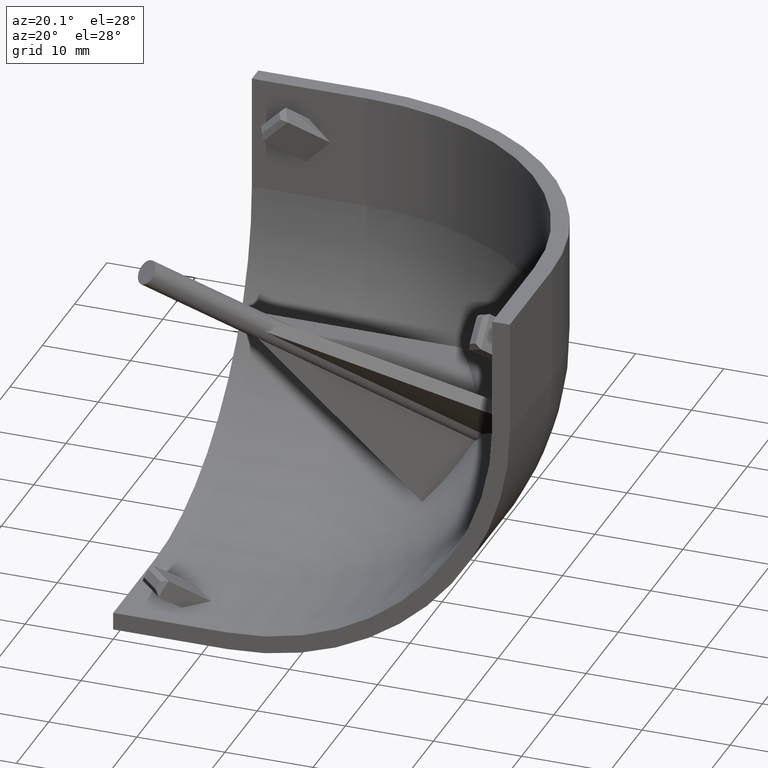
[diagram: clean part render]
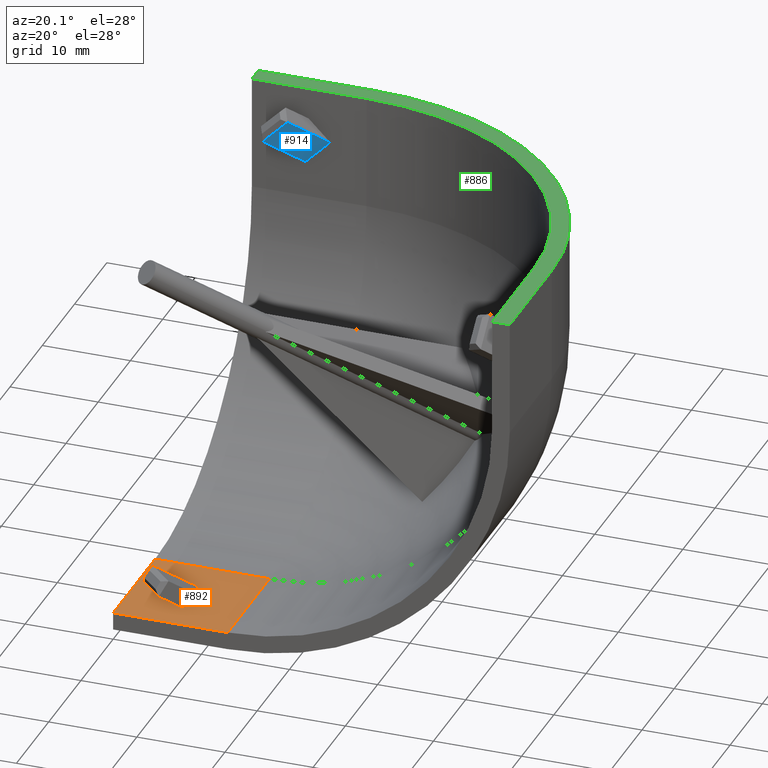
[diagram: same view with three faces highlighted in distinct colors, each labeled with its STEP entity id]
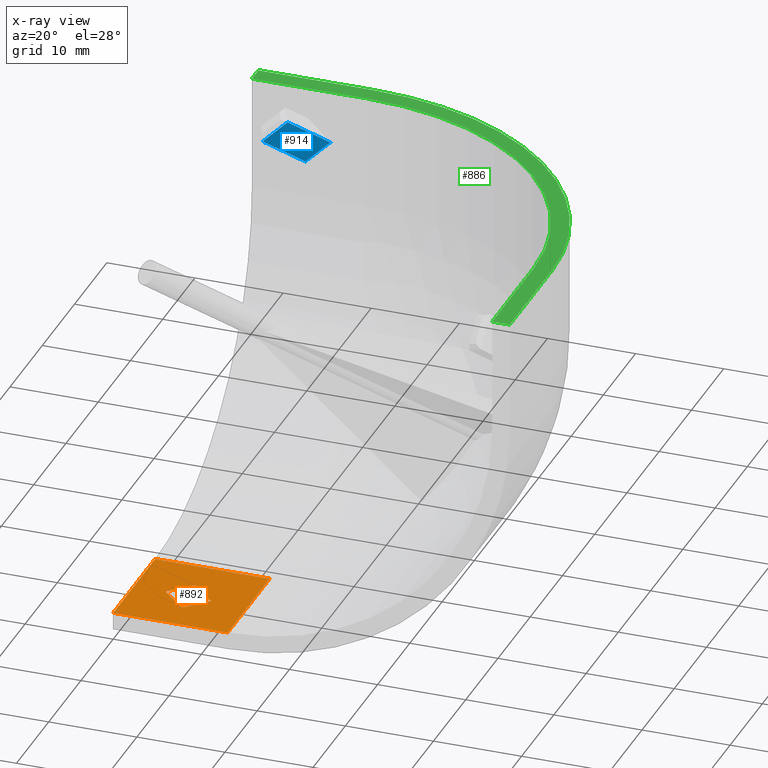
[diagram: x-ray of the same camera — body ghosted, the three highlighted faces saturated]
A machine part, auxiliary view with three faces highlighted in distinct colors.
The next image is the same camera in x-ray (body ghosted, the three faces saturated) — at least one of them is partly hidden behind the body in this view.
Their STEP definitions:

[orange] entity #892 — the highlighted planar face has unit normal (0, 0, -1).
#23=PLANE('',#977);
#67=FACE_BOUND('',#345,.T.);
#78=LINE('',#1346,#177);
#89=LINE('',#1375,#188);
#106=LINE('',#1415,#205);
#108=LINE('',#1420,#207);
#109=LINE('',#1423,#208);
#110=LINE('',#1425,#209);
#111=LINE('',#1427,#210);
#112=LINE('',#1428,#211);
#177=VECTOR('',#1074,12.9999999999998);
#188=VECTOR('',#1101,13.);
#205=VECTOR('',#1140,12.9999999999998);
#207=VECTOR('',#1148,12.9999999999999);
#208=VECTOR('',#1149,3.46410161503992);
#209=VECTOR('',#1150,3.99999999971386);
#210=VECTOR('',#1151,3.46410161498843);
#211=VECTOR('',#1152,3.99999999972648);
#285=FACE_OUTER_BOUND('',#344,.T.);
#344=EDGE_LOOP('',(#718,#719,#720,#721));
#345=EDGE_LOOP('',(#722,#723,#724,#725));
#424=VERTEX_POINT('',#1315);
#436=VERTEX_POINT('',#1343);
#437=VERTEX_POINT('',#1345);
#447=VERTEX_POINT('',#1373);
#460=VERTEX_POINT('',#1421);
#461=VERTEX_POINT('',#1422);
#462=VERTEX_POINT('',#1424);
#463=VERTEX_POINT('',#1426);
#518=EDGE_CURVE('',#436,#437,#78,.T.);
#533=EDGE_CURVE('',#436,#447,#89,.T.);
#554=EDGE_CURVE('',#447,#424,#106,.T.);
#556=EDGE_CURVE('',#437,#424,#108,.T.);
#557=EDGE_CURVE('',#460,#461,#109,.T.);
#558=EDGE_CURVE('',#462,#460,#110,.T.);
#559=EDGE_CURVE('',#463,#462,#111,.T.);
#560=EDGE_CURVE('',#461,#463,#112,.T.);
#718=ORIENTED_EDGE('',*,*,#518,.F.);
#719=ORIENTED_EDGE('',*,*,#533,.T.);
#720=ORIENTED_EDGE('',*,*,#554,.T.);
#721=ORIENTED_EDGE('',*,*,#556,.F.);
#722=ORIENTED_EDGE('',*,*,#557,.F.);
#723=ORIENTED_EDGE('',*,*,#558,.F.);
#724=ORIENTED_EDGE('',*,*,#559,.F.);
#725=ORIENTED_EDGE('',*,*,#560,.F.);
#892=ADVANCED_FACE('',(#285,#67),#23,.F.);
#977=AXIS2_PLACEMENT_3D('',#1419,#1146,#1147);
#1074=DIRECTION('',(0.,1.,0.));
#1101=DIRECTION('',(1.,0.,0.));
#1140=DIRECTION('',(0.,1.,0.));
#1146=DIRECTION('center_axis',(0.,0.,-1.));
#1147=DIRECTION('ref_axis',(-1.,0.,0.));
#1148=DIRECTION('',(1.,0.,0.));
#1149=DIRECTION('',(-0.707106781186548,-0.707106781186548,7.69185074589951E-15));
#1150=DIRECTION('',(-0.707106781186541,0.707106781186554,-2.22044604926627E-15));
#1151=DIRECTION('',(0.707106781186547,0.707106781186548,-7.69185074577494E-15));
#1152=DIRECTION('',(0.707106781186543,-0.707106781186552,2.22044604920326E-15));
#1315=CARTESIAN_POINT('',(12.9999999999999,12.9999999999996,-43.));
#1343=CARTESIAN_POINT('',(0.,-3.05311331771918E-13,-42.9999999999998));
#1345=CARTESIAN_POINT('',(0.,12.9999999999995,-42.9999999999999));
#1346=CARTESIAN_POINT('',(0.,-3.05311331771918E-13,-42.9999999999998));
#1373=CARTESIAN_POINT('',(13.,-1.94289029309402E-13,-42.9999999999999));
#1375=CARTESIAN_POINT('',(-7.105427357601E-15,-6.66133814775094E-13,-42.9999999999996));
#1415=CARTESIAN_POINT('',(13.,-1.94289029309402E-13,-42.9999999999999));
#1419=CARTESIAN_POINT('Origin',(-55.2177507691141,-6.66133814775094E-13,
-42.9999999999996));
#1420=CARTESIAN_POINT('',(0.,12.9999999999992,-42.9999999999997));
#1421=CARTESIAN_POINT('',(6.07063465642669,8.89783703581626,-43.0000000012206));
#1422=CARTESIAN_POINT('',(3.62114491370378,6.44834729311119,-43.0000000011923));
#1423=CARTESIAN_POINT('',(6.07063465740066,8.89783703623107,-43.0000000000212));
#1424=CARTESIAN_POINT('',(8.89906178096568,6.06940991126753,-43.0000000012268));
#1425=CARTESIAN_POINT('',(8.89906178170461,6.06940991215762,-43.0000000000632));
#1426=CARTESIAN_POINT('',(6.4495720382881,3.61992016858994,-43.000000001198));
#1427=CARTESIAN_POINT('',(6.44957203906961,3.61992016929435,-43.0000000000212));
#1428=CARTESIAN_POINT('',(3.62114491419663,6.44834729426191,-43.0000000000063));

[blue] entity #914 — the highlighted planar face has unit normal (0.4082, -0.8165, -0.4082).
#44=PLANE('',#999);
#101=LINE('',#1401,#200);
#143=LINE('',#1498,#242);
#144=LINE('',#1500,#243);
#145=LINE('',#1501,#244);
#200=VECTOR('',#1123,3.99999999981728);
#242=VECTOR('',#1227,6.14205116203253);
#243=VECTOR('',#1228,4.00000000051261);
#244=VECTOR('',#1229,6.14205116195454);
#307=FACE_OUTER_BOUND('',#367,.T.);
#367=EDGE_LOOP('',(#801,#802,#803,#804));
#455=VERTEX_POINT('',#1399);
#456=VERTEX_POINT('',#1400);
#480=VERTEX_POINT('',#1497);
#481=VERTEX_POINT('',#1499);
#547=EDGE_CURVE('',#455,#456,#101,.T.);
#591=EDGE_CURVE('',#455,#480,#143,.T.);
#592=EDGE_CURVE('',#480,#481,#144,.T.);
#593=EDGE_CURVE('',#456,#481,#145,.T.);
#801=ORIENTED_EDGE('',*,*,#591,.T.);
#802=ORIENTED_EDGE('',*,*,#592,.T.);
#803=ORIENTED_EDGE('',*,*,#593,.F.);
#804=ORIENTED_EDGE('',*,*,#547,.F.);
#914=ADVANCED_FACE('',(#307),#44,.T.);
#999=AXIS2_PLACEMENT_3D('',#1496,#1225,#1226);
#1123=DIRECTION('',(-0.707106781186556,0.,-0.707106781186539));
#1225=DIRECTION('center_axis',(0.408248290463857,-0.816496580927727,-0.408248290463867));
#1226=DIRECTION('ref_axis',(-0.707106781186548,0.,-0.707106781186548));
#1227=DIRECTION('',(-0.577350269189626,-0.577350269189625,0.577350269189626));
#1228=DIRECTION('',(-0.707106781186552,3.33066907388267E-15,-0.707106781186543));
#1229=DIRECTION('',(-0.577350269189626,-0.577350269189626,0.577350269189626));
#1399=CARTESIAN_POINT('',(8.89906177938035,42.9999999994168,-6.06940991525163));
#1400=CARTESIAN_POINT('',(6.07063465480166,42.9999999993869,-8.89783703990691));
#1401=CARTESIAN_POINT('',(8.89906178184472,43.0000000000064,-6.06940991213125));
#1496=CARTESIAN_POINT('Origin',(499965.899061782,500000.,-499963.069409918));
#1497=CARTESIAN_POINT('',(5.35294688964307,39.4538851078529,-2.52329502122504));
#1498=CARTESIAN_POINT('',(8.89906177995726,42.999999998312,-6.06940991559532));
#1499=CARTESIAN_POINT('',(2.52451976473016,39.4538851076432,-5.35172214652944));
#1500=CARTESIAN_POINT('',(5.35294688998533,39.4538851082302,-2.52329502038151));
#1501=CARTESIAN_POINT('',(6.07063465524698,42.9999999981956,-8.89783704053843));

[green] entity #886 — the highlighted planar face has unit normal (0, 0, 1).
#21=PLANE('',#969);
#74=LINE('',#1336,#173);
#80=LINE('',#1352,#179);
#84=LINE('',#1364,#183);
#87=LINE('',#1370,#186);
#91=LINE('',#1381,#190);
#99=LINE('',#1397,#198);
#173=VECTOR('',#1068,2.);
#179=VECTOR('',#1080,12.9999999999998);
#183=VECTOR('',#1092,12.9999999999998);
#186=VECTOR('',#1097,2.00000000000001);
#190=VECTOR('',#1107,12.9999999999998);
#198=VECTOR('',#1121,12.9999999999998);
#279=FACE_OUTER_BOUND('',#338,.T.);
#338=EDGE_LOOP('',(#691,#692,#693,#694,#695,#696,#697,#698));
#402=CIRCLE('',#959,32.);
#406=CIRCLE('',#967,30.);
#431=VERTEX_POINT('',#1334);
#432=VERTEX_POINT('',#1335);
#439=VERTEX_POINT('',#1351);
#441=VERTEX_POINT('',#1357);
#443=VERTEX_POINT('',#1363);
#445=VERTEX_POINT('',#1369);
#449=VERTEX_POINT('',#1380);
#454=VERTEX_POINT('',#1393);
#513=EDGE_CURVE('',#431,#432,#74,.T.);
#521=EDGE_CURVE('',#439,#431,#80,.T.);
#524=EDGE_CURVE('',#441,#439,#402,.T.);
#527=EDGE_CURVE('',#443,#441,#84,.T.);
#530=EDGE_CURVE('',#445,#443,#87,.T.);
#536=EDGE_CURVE('',#449,#445,#91,.T.);
#543=EDGE_CURVE('',#454,#449,#406,.T.);
#545=EDGE_CURVE('',#432,#454,#99,.T.);
#691=ORIENTED_EDGE('',*,*,#513,.T.);
#692=ORIENTED_EDGE('',*,*,#545,.T.);
#693=ORIENTED_EDGE('',*,*,#543,.T.);
#694=ORIENTED_EDGE('',*,*,#536,.T.);
#695=ORIENTED_EDGE('',*,*,#530,.T.);
#696=ORIENTED_EDGE('',*,*,#527,.T.);
#697=ORIENTED_EDGE('',*,*,#524,.T.);
#698=ORIENTED_EDGE('',*,*,#521,.T.);
#886=ADVANCED_FACE('',(#279),#21,.T.);
#959=AXIS2_PLACEMENT_3D('',#1358,#1085,#1086);
#967=AXIS2_PLACEMENT_3D('',#1394,#1116,#1117);
#969=AXIS2_PLACEMENT_3D('',#1407,#1127,#1128);
#1068=DIRECTION('',(0.,-1.,0.));
#1080=DIRECTION('',(-1.,0.,0.));
#1085=DIRECTION('center_axis',(0.,0.,1.));
#1086=DIRECTION('ref_axis',(1.,0.,0.));
#1092=DIRECTION('',(0.,1.,0.));
#1097=DIRECTION('',(1.,0.,0.));
#1107=DIRECTION('',(0.,-1.,0.));
#1116=DIRECTION('center_axis',(0.,0.,-1.));
#1117=DIRECTION('ref_axis',(1.,0.,0.));
#1121=DIRECTION('',(1.,0.,0.));
#1127=DIRECTION('center_axis',(0.,0.,1.));
#1128=DIRECTION('ref_axis',(1.,0.,0.));
#1334=CARTESIAN_POINT('',(0.,45.,0.));
#1335=CARTESIAN_POINT('',(0.,43.,0.));
#1336=CARTESIAN_POINT('',(0.,45.,0.));
#1351=CARTESIAN_POINT('',(12.9999999999998,45.,0.));
#1352=CARTESIAN_POINT('',(12.9999999999998,45.,0.));
#1357=CARTESIAN_POINT('',(45.0000000000001,12.9999999999998,9.71445146547012E-14));
#1358=CARTESIAN_POINT('Origin',(13.,13.,0.));
#1363=CARTESIAN_POINT('',(45.0000000000001,0.,0.));
#1364=CARTESIAN_POINT('',(45.0000000000001,0.,0.));
#1369=CARTESIAN_POINT('',(43.0000000000001,0.,0.));
#1370=CARTESIAN_POINT('',(43.0000000000001,0.,0.));
#1380=CARTESIAN_POINT('',(43.0000000000001,12.9999999999998,0.));
#1381=CARTESIAN_POINT('',(43.0000000000001,12.9999999999998,0.));
#1393=CARTESIAN_POINT('',(12.9999999999998,43.,0.));
#1394=CARTESIAN_POINT('Origin',(13.,13.,0.));
#1397=CARTESIAN_POINT('',(0.,43.,0.));
#1407=CARTESIAN_POINT('Origin',(13.,13.,0.));